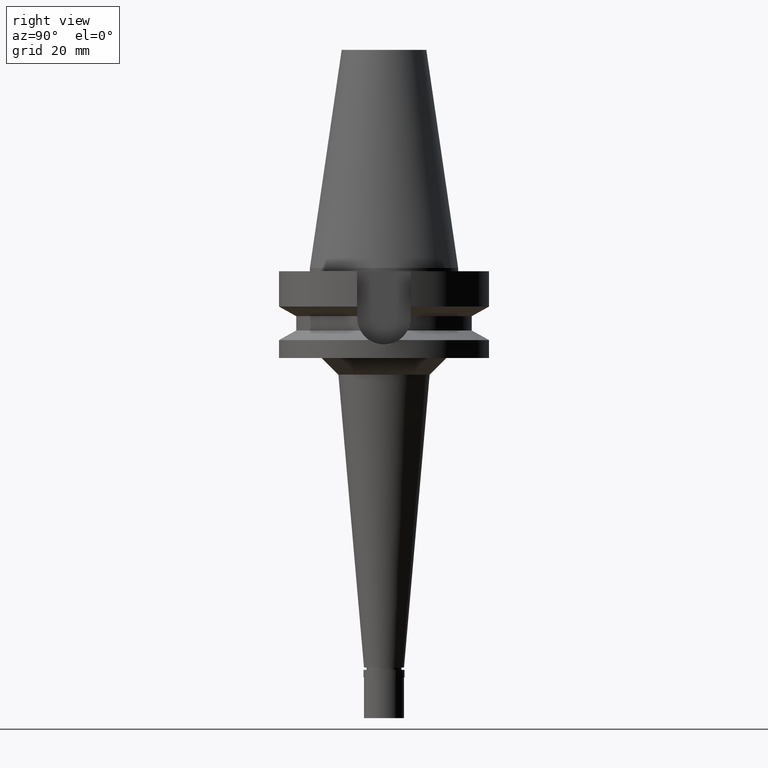
[diagram: clean part render]
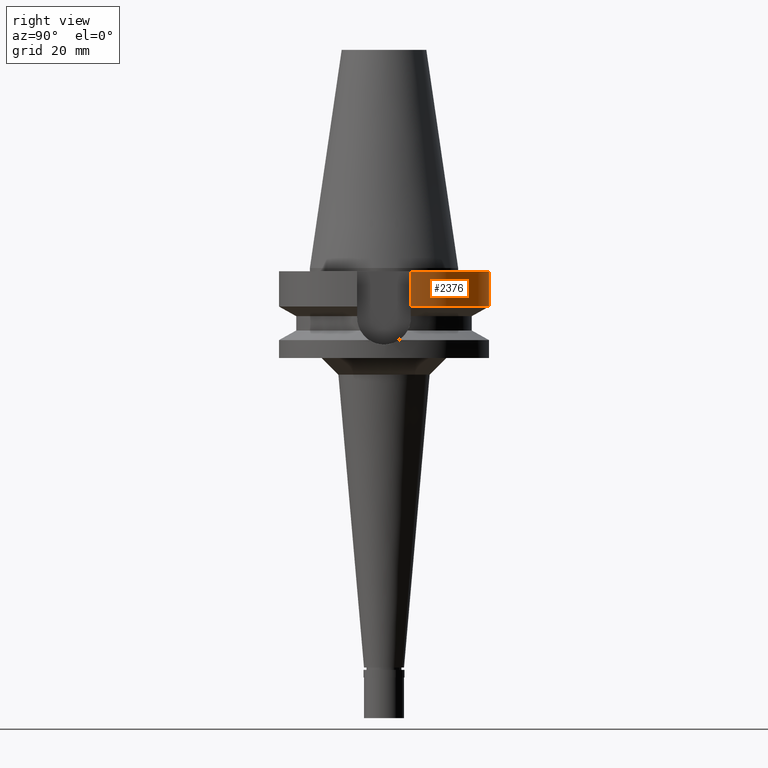
[diagram: same view with one face highlighted and labeled with its STEP entity id]
A machine part, right view. The second image highlights one B-rep face of the part: STEP entity #2376.
In plain terms, the highlighted cylindrical surface (partial cylindrical patch) has radius 31.5 mm, axis along (0, 0, -1).
Its self-contained STEP definition (entity closure, byte-faithful):
#185 = CARTESIAN_POINT ( 'NONE',  ( 30.45402291366999847, 8.049999277874000825, -11.56551215671000143 ) ) ;
#458 = CARTESIAN_POINT ( 'NONE',  ( 0.0000000000000000000, 1.065333950388000029E-14, -11.56550565266999975 ) ) ;
#538 = FACE_OUTER_BOUND ( 'NONE', #1340, .T. ) ;
#604 = CIRCLE ( 'NONE', #2398, 31.50000000000000000 ) ;
#660 = VECTOR ( 'NONE', #2020, 1000.000000000000114 ) ;
#681 = ORIENTED_EDGE ( 'NONE', *, *, #1920, .T. ) ;
#734 = ORIENTED_EDGE ( 'NONE', *, *, #842, .F. ) ;
#745 = CARTESIAN_POINT ( 'NONE',  ( 30.45402291366999847, 8.049999277874000825, -11.56551215671000143 ) ) ;
#772 = DIRECTION ( 'NONE',  ( 0.0000000000000000000, -1.000000000000000000, 0.0000000000000000000 ) ) ;
#813 = EDGE_CURVE ( 'NONE', #2121, #1492, #1334, .T. ) ;
#815 = DIRECTION ( 'NONE',  ( 1.036640203111017689E-07, 3.921716943076068451E-07, -0.9999999999999177325 ) ) ;
#842 = EDGE_CURVE ( 'NONE', #2030, #1492, #2954, .T. ) ;
#1003 = AXIS2_PLACEMENT_3D ( 'NONE', #2706, #1331, #1755 ) ;
#1015 = CYLINDRICAL_SURFACE ( 'NONE', #1147, 31.50000000000000000 ) ;
#1147 = AXIS2_PLACEMENT_3D ( 'NONE', #1275, #2874, #772 ) ;
#1260 = CARTESIAN_POINT ( 'NONE',  ( -30.45402272279000044, 8.050000000000000711, -1.000000000000000000 ) ) ;
#1275 = CARTESIAN_POINT ( 'NONE',  ( 0.0000000000000000000, 2.145826121465999692E-14, 75.21999999999999886 ) ) ;
#1331 = DIRECTION ( 'NONE',  ( 0.0000000000000000000, 0.0000000000000000000, -1.000000000000000000 ) ) ;
#1334 = CIRCLE ( 'NONE', #1003, 31.50000000000000000 ) ;
#1340 = EDGE_LOOP ( 'NONE', ( #2711, #1506, #734, #681 ) ) ;
#1427 = LINE ( 'NONE', #1260, #1772 ) ;
#1492 = VERTEX_POINT ( 'NONE', #2965 ) ;
#1506 = ORIENTED_EDGE ( 'NONE', *, *, #813, .T. ) ;
#1653 = CARTESIAN_POINT ( 'NONE',  ( -30.45402162752999686, 8.050004143477000440, -11.56546832998999896 ) ) ;
#1724 = CARTESIAN_POINT ( 'NONE',  ( -30.45402272279000044, 8.050000000000000711, -1.000000000000000000 ) ) ;
#1755 = DIRECTION ( 'NONE',  ( 0.0000000000000000000, 1.000000000000000000, 0.0000000000000000000 ) ) ;
#1772 = VECTOR ( 'NONE', #815, 1000.000000000000114 ) ;
#1920 = EDGE_CURVE ( 'NONE', #2030, #2286, #604, .T. ) ;
#2020 = DIRECTION ( 'NONE',  ( -1.806642018866990802E-08, 6.834746424480962008E-08, 0.9999999999999974465 ) ) ;
#2030 = VERTEX_POINT ( 'NONE', #745 ) ;
#2093 = DIRECTION ( 'NONE',  ( 0.0000000000000000000, 0.0000000000000000000, 1.000000000000000000 ) ) ;
#2121 = VERTEX_POINT ( 'NONE', #1724 ) ;
#2286 = VERTEX_POINT ( 'NONE', #1653 ) ;
#2376 = ADVANCED_FACE ( 'NONE', ( #538 ), #1015, .T. ) ;
#2398 = AXIS2_PLACEMENT_3D ( 'NONE', #458, #2093, #2607 ) ;
#2607 = DIRECTION ( 'NONE',  ( 0.0000000000000000000, 1.000000000000000000, 0.0000000000000000000 ) ) ;
#2706 = CARTESIAN_POINT ( 'NONE',  ( 0.0000000000000000000, 2.145826121465999692E-14, -1.000000000000000000 ) ) ;
#2711 = ORIENTED_EDGE ( 'NONE', *, *, #2848, .F. ) ;
#2848 = EDGE_CURVE ( 'NONE', #2121, #2286, #1427, .T. ) ;
#2874 = DIRECTION ( 'NONE',  ( 0.0000000000000000000, 0.0000000000000000000, -1.000000000000000000 ) ) ;
#2954 = LINE ( 'NONE', #185, #660 ) ;
#2965 = CARTESIAN_POINT ( 'NONE',  ( 30.45402272279000044, 8.050000000000000711, -1.000000000000000000 ) ) ;